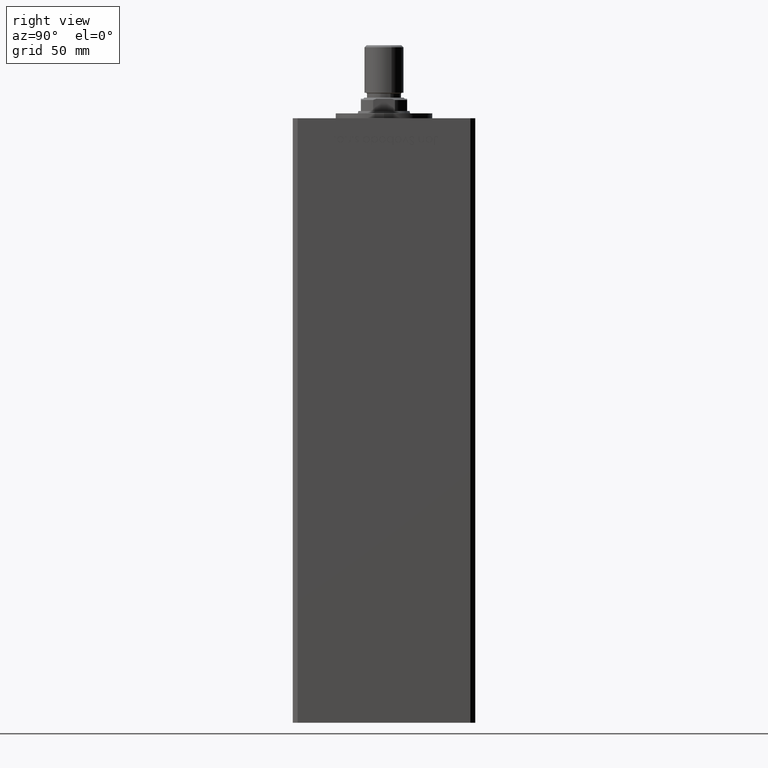
[diagram: clean part render]
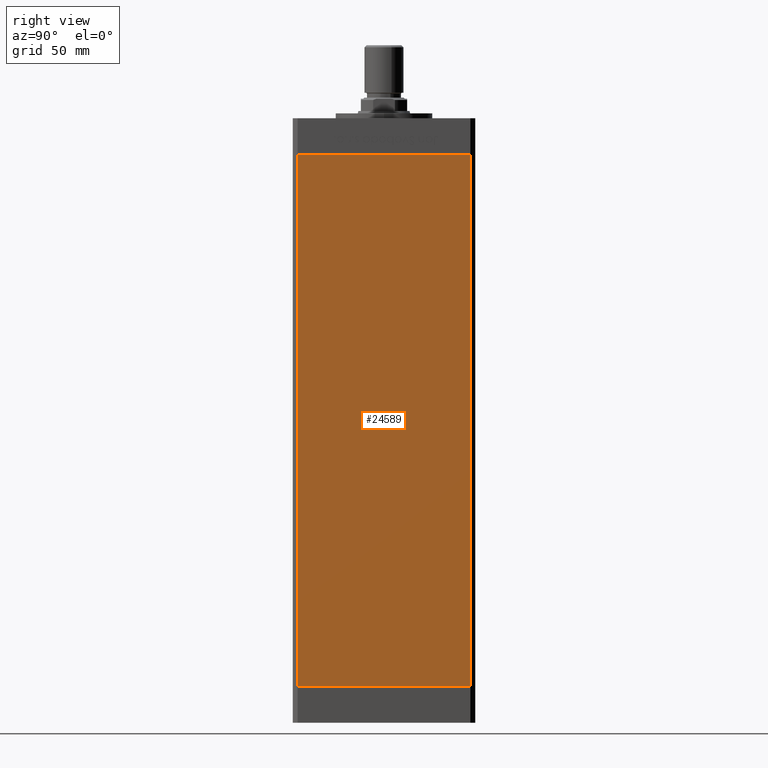
[diagram: same view with one face highlighted and labeled with its STEP entity id]
A machine part, right view. The second image highlights one B-rep face of the part: STEP entity #24589.
In plain terms, the highlighted planar face has unit normal (1, -0, 0).
Its self-contained STEP definition (entity closure, byte-faithful):
#109 = ORIENTED_EDGE ( 'NONE', *, *, #14523, .F. ) ;
#1206 = EDGE_LOOP ( 'NONE', ( #109, #4479, #46655, #40681 ) ) ;
#3043 = VERTEX_POINT ( 'NONE', #12017 ) ;
#4479 = ORIENTED_EDGE ( 'NONE', *, *, #46016, .F. ) ;
#6124 = LINE ( 'NONE', #19059, #34339 ) ;
#7905 = LINE ( 'NONE', #37315, #30106 ) ;
#8743 = LINE ( 'NONE', #49025, #37299 ) ;
#8769 = FACE_OUTER_BOUND ( 'NONE', #1206, .T. ) ;
#8975 = DIRECTION ( 'NONE',  ( -0.000000000000000000, -0.000000000000000000, -1.000000000000000000 ) ) ;
#12017 = CARTESIAN_POINT ( 'NONE',  ( 42.50000000000000711, 35.50000000000001421, 0.000000000000000000 ) ) ;
#14523 = EDGE_CURVE ( 'NONE', #3043, #26196, #8743, .T. ) ;
#16158 = DIRECTION ( 'NONE',  ( -2.931927001650941360E-16, -1.000000000000000000, 0.000000000000000000 ) ) ;
#16976 = DIRECTION ( 'NONE',  ( 1.000000000000000000, -2.931927001650941360E-16, 0.000000000000000000 ) ) ;
#18112 = CARTESIAN_POINT ( 'NONE',  ( 42.50000000000000711, 35.50000000000001421, 218.5000000000000000 ) ) ;
#19059 = CARTESIAN_POINT ( 'NONE',  ( 42.50000000000000711, 35.50000000000001421, 218.5000000000000000 ) ) ;
#19436 = VERTEX_POINT ( 'NONE', #42841 ) ;
#20158 = CARTESIAN_POINT ( 'NONE',  ( 42.50000000000000711, 35.50000000000001421, 218.5000000000000000 ) ) ;
#24589 = ADVANCED_FACE ( 'NONE', ( #8769 ), #37374, .T. ) ;
#24925 = DIRECTION ( 'NONE',  ( 2.931927001650941360E-16, 1.000000000000000000, 0.000000000000000000 ) ) ;
#26196 = VERTEX_POINT ( 'NONE', #27659 ) ;
#27659 = CARTESIAN_POINT ( 'NONE',  ( 42.49999999999998579, -35.50000000000000711, 0.000000000000000000 ) ) ;
#30106 = VECTOR ( 'NONE', #8975, 1000.000000000000000 ) ;
#32046 = VERTEX_POINT ( 'NONE', #44735 ) ;
#33431 = EDGE_CURVE ( 'NONE', #32046, #19436, #6124, .T. ) ;
#33492 = LINE ( 'NONE', #18112, #47837 ) ;
#34339 = VECTOR ( 'NONE', #51672, 1000.000000000000000 ) ;
#37299 = VECTOR ( 'NONE', #16158, 1000.000000000000000 ) ;
#37315 = CARTESIAN_POINT ( 'NONE',  ( 42.49999999999998579, -35.50000000000000711, 218.5000000000000000 ) ) ;
#37374 = PLANE ( 'NONE',  #40108 ) ;
#40108 = AXIS2_PLACEMENT_3D ( 'NONE', #20158, #16976, #24925 ) ;
#40681 = ORIENTED_EDGE ( 'NONE', *, *, #43438, .T. ) ;
#42841 = CARTESIAN_POINT ( 'NONE',  ( 42.49999999999998579, -35.50000000000000711, 218.5000000000000000 ) ) ;
#43438 = EDGE_CURVE ( 'NONE', #19436, #26196, #7905, .T. ) ;
#44735 = CARTESIAN_POINT ( 'NONE',  ( 42.50000000000000711, 35.50000000000001421, 218.5000000000000000 ) ) ;
#46016 = EDGE_CURVE ( 'NONE', #32046, #3043, #33492, .T. ) ;
#46655 = ORIENTED_EDGE ( 'NONE', *, *, #33431, .T. ) ;
#47837 = VECTOR ( 'NONE', #49677, 1000.000000000000000 ) ;
#49025 = CARTESIAN_POINT ( 'NONE',  ( 42.50000000000000711, 35.50000000000001421, 0.000000000000000000 ) ) ;
#49677 = DIRECTION ( 'NONE',  ( -0.000000000000000000, -0.000000000000000000, -1.000000000000000000 ) ) ;
#51672 = DIRECTION ( 'NONE',  ( -2.931927001650941360E-16, -1.000000000000000000, 0.000000000000000000 ) ) ;